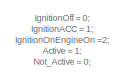
[diagram: root canvas - part 1/3, top center region]
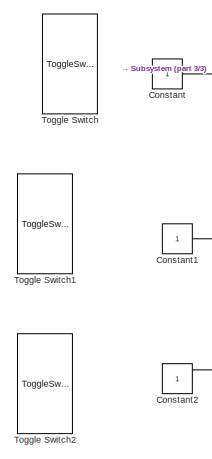
[diagram: root canvas - part 2/3, middle left region]
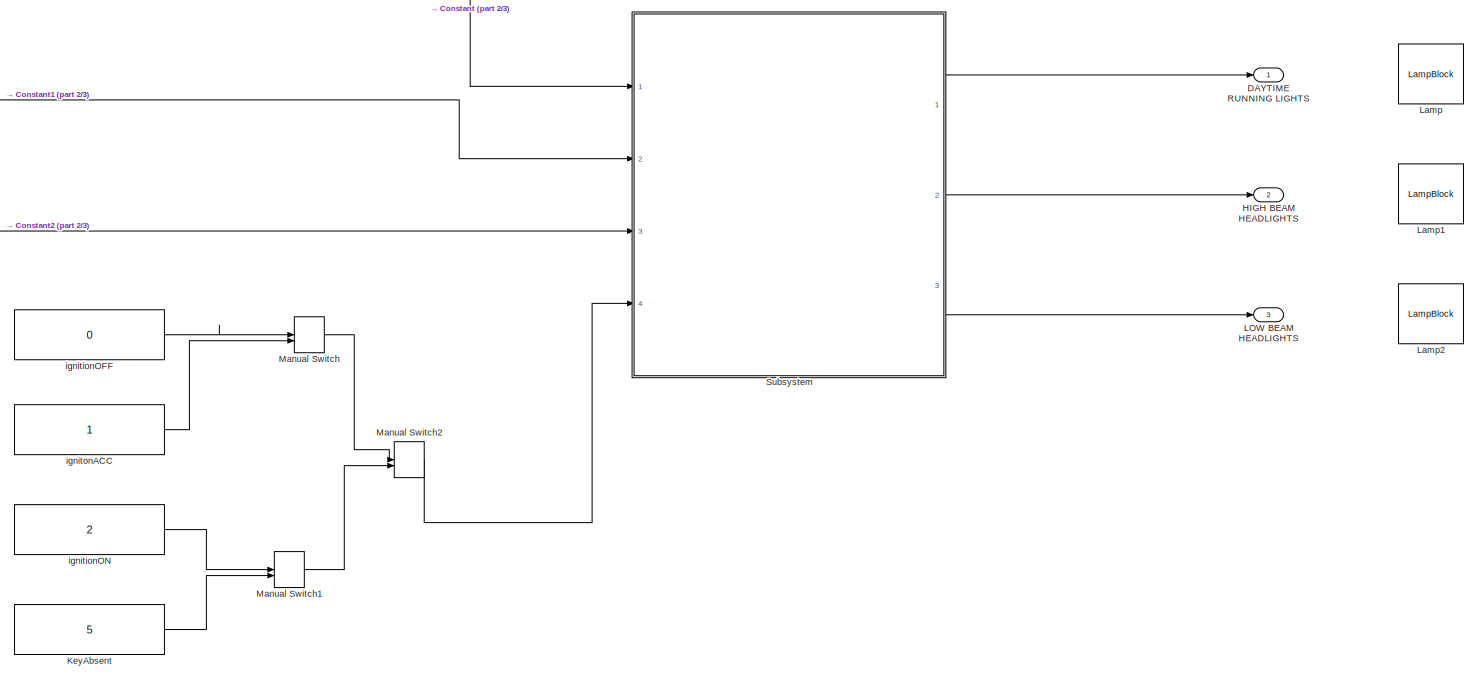
[diagram: root canvas - part 3/3, full width, middle band]
MODEL slx_621723db5ad0
KIND model
CONFIG AbsTol = auto
CONFIG EnableMultiTasking = off
CONFIG FixedStep = 0.01
CONFIG MaxStep = auto
CONFIG MinStep = auto
CONFIG RelTol = 1e-3
CONFIG SampleTimeConstraint = Unconstrained
CONFIG SolverName = FixedStepDiscrete
CONFIG StartTime = 0.0
CONFIG StopTime = inf
WORKSPACE source: MATLAB code (in-file)
WORKSPACE IgnitionOff = 0
WORKSPACE IgnitionACC = 1
WORKSPACE IgnitionOnEngineOn = 2
WORKSPACE KeyAbsent = 5
WORKSPACE Active = 1
WORKSPACE Not_Active = 0
BLOCK [Constant] Constant
BLOCK [Constant] Constant1
BLOCK [Constant] Constant2
BLOCK [Outport] DAYTIME RUNNING LIGHTS
BLOCK [Outport] HIGH BEAM HEADLIGHTS
  Port = 2
BLOCK [Constant] KeyAbsent
  SampleTime = -1
  Value = 5
BLOCK [Outport] LOW BEAM HEADLIGHTS
  Port = 3
BLOCK [LampBlock] Lamp
  LabelPosition = Hide
BLOCK [LampBlock] Lamp1
  LabelPosition = Hide
BLOCK [LampBlock] Lamp2
  LabelPosition = Hide
BLOCK [ManualSwitch] Manual Switch
  CurrentSetting = 0
BLOCK [ManualSwitch] Manual Switch1
  CurrentSetting = 0
BLOCK [ManualSwitch] Manual Switch2
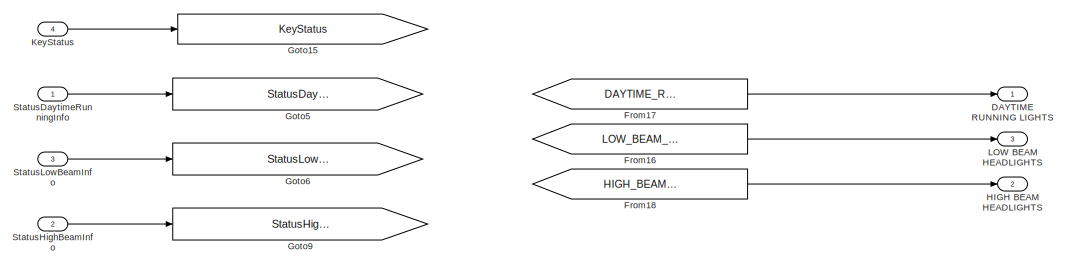
[diagram: Subsystem - part 1/3, top center region]
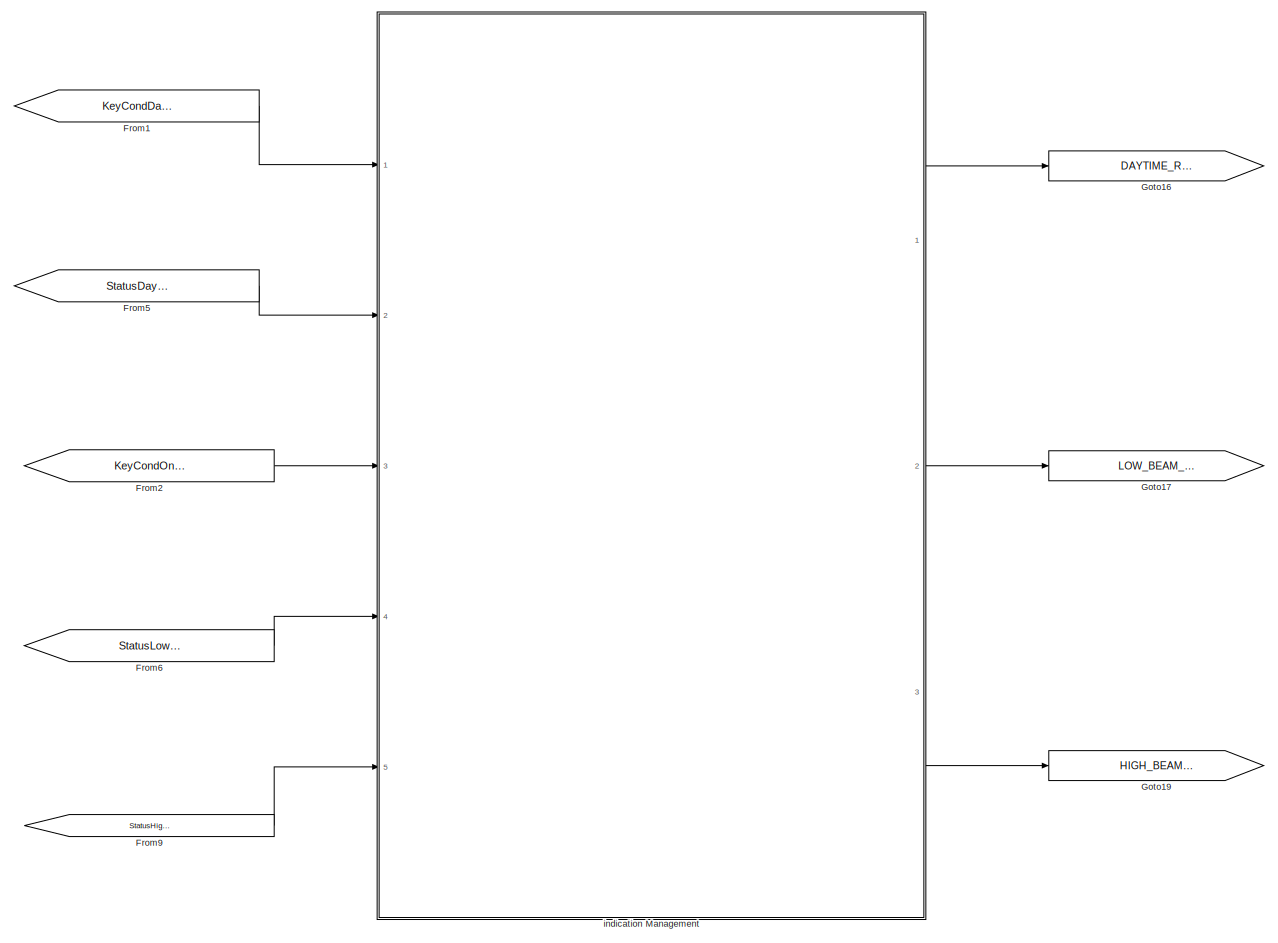
[diagram: Subsystem - part 2/3, middle right region]
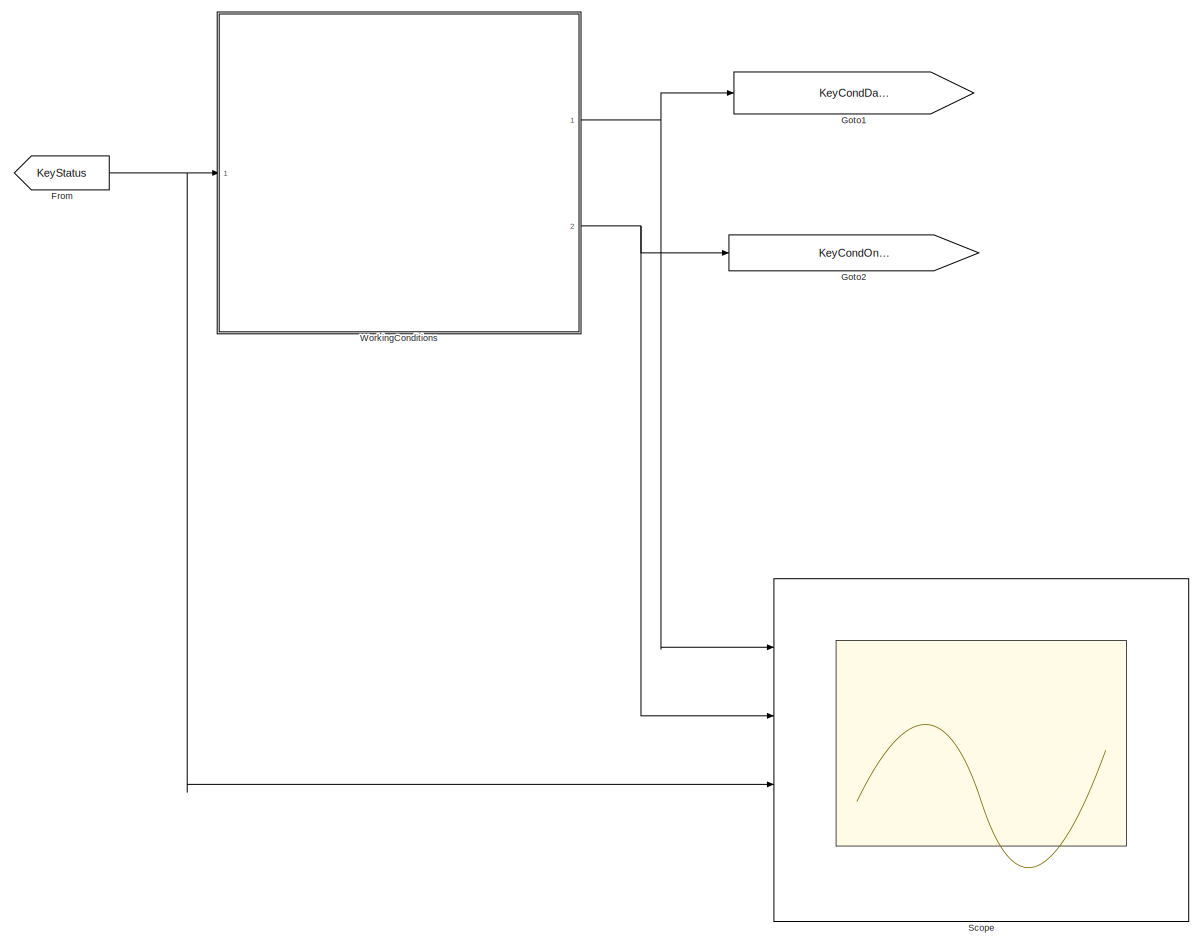
[diagram: Subsystem - part 3/3, bottom left region]
BLOCK [SubSystem] Subsystem
  Ports = [4, 3]
  RequestExecContextInheritance = off
BLOCK [Outport] Subsystem/DAYTIME RUNNING LIGHTS
BLOCK [From] Subsystem/From
  GotoTag = KeyStatus
BLOCK [From] Subsystem/From1
  GotoTag = KeyCondDayTimeLights
BLOCK [From] Subsystem/From16
  GotoTag = LOW_BEAM_HEADLIGHTS
BLOCK [From] Subsystem/From17
  GotoTag = DAYTIME_RUNNING_LIGHTS
BLOCK [From] Subsystem/From18
  GotoTag = HIGH_BEAM_HEADLIGHTS
BLOCK [From] Subsystem/From2
  GotoTag = KeyCondOnOrACC
BLOCK [From] Subsystem/From5
  GotoTag = StatusDaytimeRunningInfos
BLOCK [From] Subsystem/From6
  GotoTag = StatusLowBeamInfo
BLOCK [From] Subsystem/From9
  GotoTag = StatusHighBeamInfo
BLOCK [Goto] Subsystem/Goto1
  GotoTag = KeyCondDayTimeLights
BLOCK [Goto] Subsystem/Goto15
  GotoTag = KeyStatus
BLOCK [Goto] Subsystem/Goto16
  GotoTag = DAYTIME_RUNNING_LIGHTS
BLOCK [Goto] Subsystem/Goto17
  GotoTag = LOW_BEAM_HEADLIGHTS
BLOCK [Goto] Subsystem/Goto19
  GotoTag = HIGH_BEAM_HEADLIGHTS
BLOCK [Goto] Subsystem/Goto2
  GotoTag = KeyCondOnOrACC
BLOCK [Goto] Subsystem/Goto5
  GotoTag = StatusDaytimeRunningInfos
BLOCK [Goto] Subsystem/Goto6
  GotoTag = StatusLowBeamInfo
BLOCK [Goto] Subsystem/Goto9
  GotoTag = StatusHighBeamInfo
BLOCK [Outport] Subsystem/HIGH BEAM HEADLIGHTS
  Port = 2
BLOCK [Inport] Subsystem/KeyStatus
  Port = 4
BLOCK [Outport] Subsystem/LOW BEAM HEADLIGHTS
  Port = 3
BLOCK [Scope] Subsystem/Scope
  Floating = off
  NumInputPorts = 4
  Ports = [4]
  ScopeSpecificationString = Simulink.scopes.TimeScopeBlockCfg('CurrentConfiguration', extmgr.ConfigurationSet(extmgr.Configuration('Core','General UI',true),extmgr.Configuration('Core','Source UI',true),extmgr.Configuration('Sources','WiredSimulink',true),extmgr.Configuration('Visuals','Time Domain',true,'SerializedDisplays',{struct('MinYLimReal','0.9','MaxYLimReal','1.1','YLabelReal','','MinYLimMag','0.9','MaxYLimMag','1.1'...<+3400ch>
BLOCK [Inport] Subsystem/StatusDaytimeRunningInfo
BLOCK [Inport] Subsystem/StatusHighBeamInfo
  Port = 2
BLOCK [Inport] Subsystem/StatusLowBeamInfo
  Port = 3
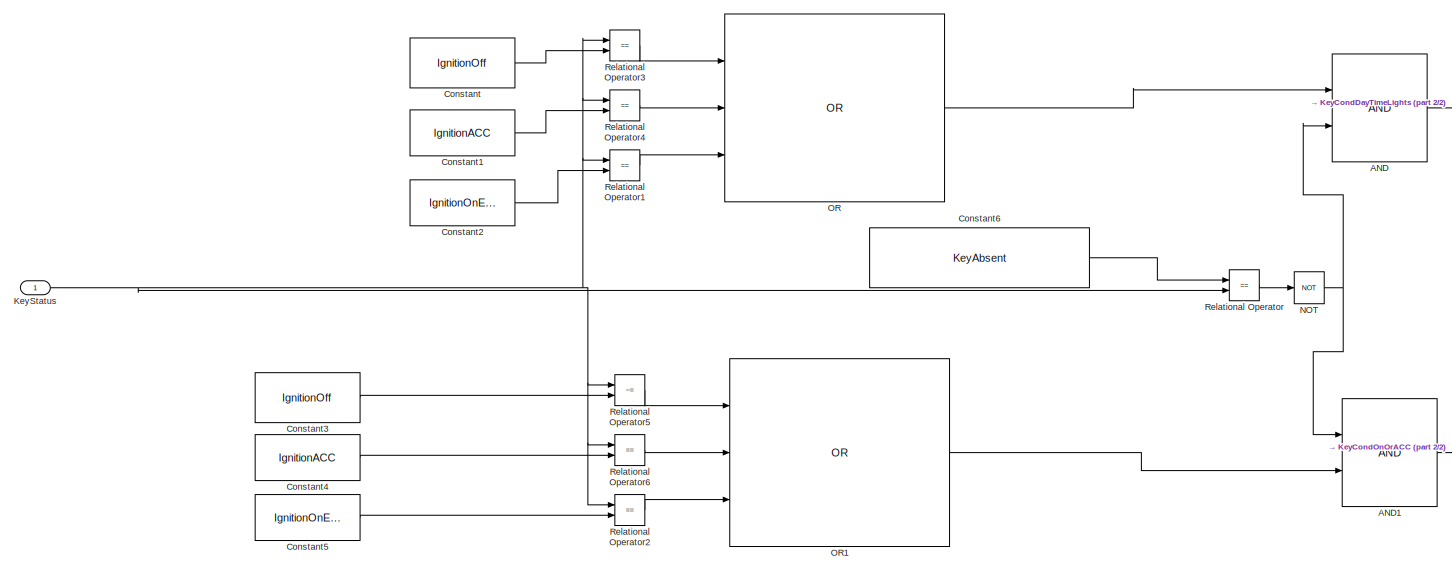
[diagram: Subsystem/WorkingConditions - part 1/2, most of the canvas]
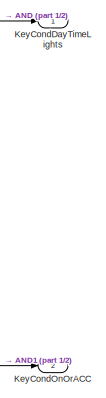
[diagram: Subsystem/WorkingConditions - part 2/2, middle right region]
BLOCK [SubSystem] Subsystem/WorkingConditions
  Ports = [1, 2]
  RequestExecContextInheritance = off
BLOCK [Logic] Subsystem/WorkingConditions/AND
  AllPortsSameDT = off
  IconShape = distinctive
  OutDataTypeStr = boolean
  Ports = [2, 1]
BLOCK [Logic] Subsystem/WorkingConditions/AND1
  AllPortsSameDT = off
  IconShape = distinctive
  OutDataTypeStr = boolean
  Ports = [2, 1]
BLOCK [Constant] Subsystem/WorkingConditions/Constant
  SampleTime = -1
  Value = IgnitionOff
BLOCK [Constant] Subsystem/WorkingConditions/Constant1
  SampleTime = -1
  Value = IgnitionACC
BLOCK [Constant] Subsystem/WorkingConditions/Constant2
  SampleTime = -1
  Value = IgnitionOnEngineOn
BLOCK [Constant] Subsystem/WorkingConditions/Constant3
  SampleTime = -1
  Value = IgnitionOff
BLOCK [Constant] Subsystem/WorkingConditions/Constant4
  SampleTime = -1
  Value = IgnitionACC
BLOCK [Constant] Subsystem/WorkingConditions/Constant5
  SampleTime = -1
  Value = IgnitionOnEngineOn
BLOCK [Constant] Subsystem/WorkingConditions/Constant6
  Value = KeyAbsent
BLOCK [Outport] Subsystem/WorkingConditions/KeyCondDayTimeLights
BLOCK [Outport] Subsystem/WorkingConditions/KeyCondOnOrACC
  Port = 2
BLOCK [Inport] Subsystem/WorkingConditions/KeyStatus
BLOCK [Logic] Subsystem/WorkingConditions/NOT
  AllPortsSameDT = off
  IconShape = distinctive
  Operator = NOT
  OutDataTypeStr = boolean
  Ports = [1, 1]
BLOCK [Logic] Subsystem/WorkingConditions/OR
  AllPortsSameDT = off
  IconShape = distinctive
  Inputs = 3
  Operator = OR
  OutDataTypeStr = boolean
  Ports = [3, 1]
BLOCK [Logic] Subsystem/WorkingConditions/OR1
  AllPortsSameDT = off
  IconShape = distinctive
  Inputs = 3
  Operator = OR
  OutDataTypeStr = boolean
  Ports = [3, 1]
BLOCK [RelationalOperator] Subsystem/WorkingConditions/Relational Operator
  InputSameDT = off
  Operator = ==
  OutDataTypeStr = boolean
  Ports = [2, 1]
  RndMeth = Simplest
BLOCK [RelationalOperator] Subsystem/WorkingConditions/Relational Operator1
  InputSameDT = off
  Operator = ==
  OutDataTypeStr = boolean
  Ports = [2, 1]
  RndMeth = Simplest
BLOCK [RelationalOperator] Subsystem/WorkingConditions/Relational Operator2
  InputSameDT = off
  Operator = ==
  OutDataTypeStr = boolean
  Ports = [2, 1]
  RndMeth = Simplest
BLOCK [RelationalOperator] Subsystem/WorkingConditions/Relational Operator3
  InputSameDT = off
  Operator = ==
  OutDataTypeStr = boolean
  Ports = [2, 1]
  RndMeth = Simplest
BLOCK [RelationalOperator] Subsystem/WorkingConditions/Relational Operator4
  InputSameDT = off
  Operator = ==
  OutDataTypeStr = boolean
  Ports = [2, 1]
  RndMeth = Simplest
BLOCK [RelationalOperator] Subsystem/WorkingConditions/Relational Operator5
  InputSameDT = off
  Operator = ~=
  OutDataTypeStr = boolean
  Ports = [2, 1]
  RndMeth = Simplest
BLOCK [RelationalOperator] Subsystem/WorkingConditions/Relational Operator6
  InputSameDT = off
  Operator = ==
  OutDataTypeStr = boolean
  Ports = [2, 1]
  RndMeth = Simplest
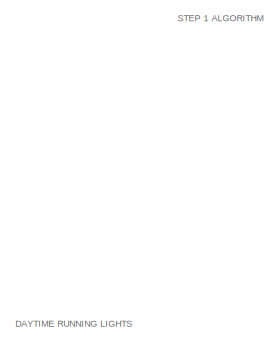
[diagram: Subsystem/indication Management - part 1/6, top center region]
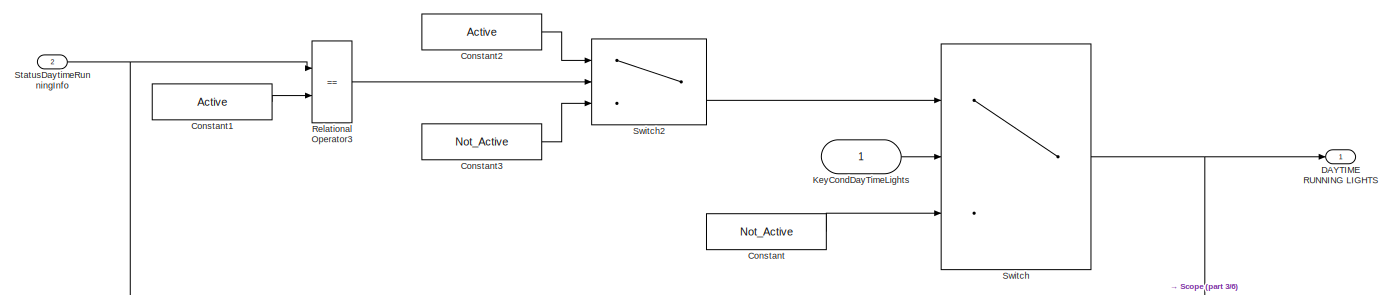
[diagram: Subsystem/indication Management - part 2/6, top center region]
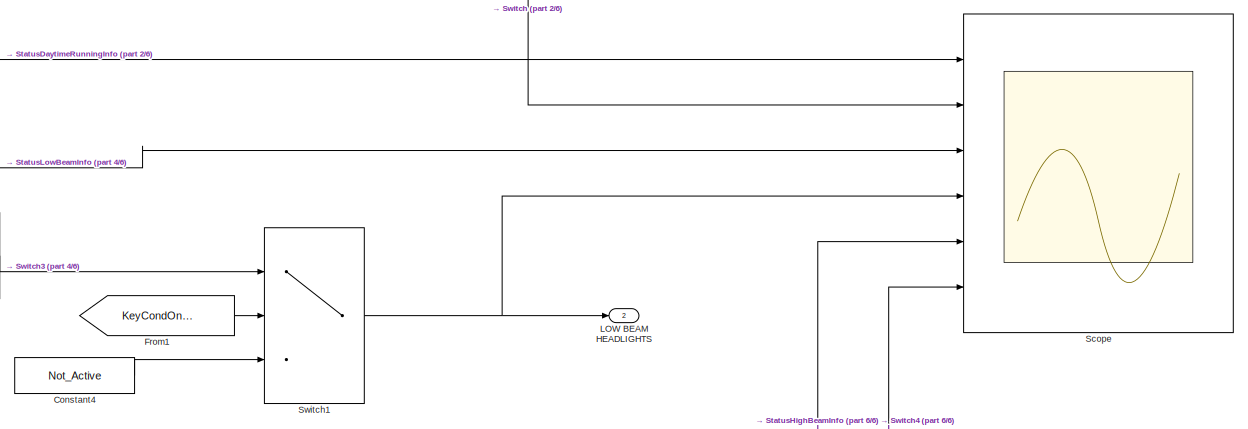
[diagram: Subsystem/indication Management - part 3/6, middle right region]
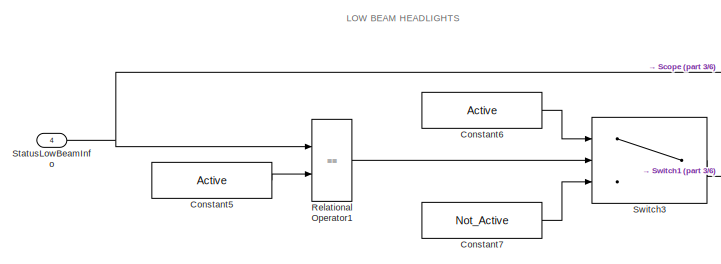
[diagram: Subsystem/indication Management - part 4/6, central region]
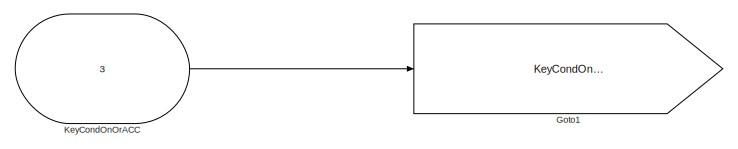
[diagram: Subsystem/indication Management - part 5/6, bottom left region]
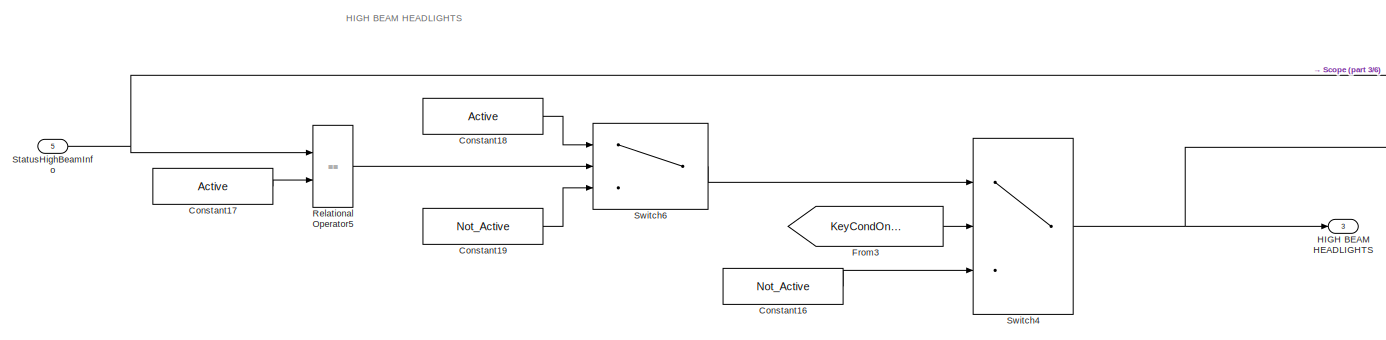
[diagram: Subsystem/indication Management - part 6/6, bottom center region]
BLOCK [SubSystem] Subsystem/indication Management
  Ports = [5, 3]
  RequestExecContextInheritance = off
BLOCK [Constant] Subsystem/indication Management/Constant
  SampleTime = -1
  Value = Not_Active
BLOCK [Constant] Subsystem/indication Management/Constant1
  SampleTime = -1
  Value = Active
BLOCK [Constant] Subsystem/indication Management/Constant16
  SampleTime = -1
  Value = Not_Active
BLOCK [Constant] Subsystem/indication Management/Constant17
  SampleTime = -1
  Value = Active
BLOCK [Constant] Subsystem/indication Management/Constant18
  SampleTime = -1
  Value = Active
BLOCK [Constant] Subsystem/indication Management/Constant19
  SampleTime = -1
  Value = Not_Active
BLOCK [Constant] Subsystem/indication Management/Constant2
  SampleTime = -1
  Value = Active
BLOCK [Constant] Subsystem/indication Management/Constant3
  SampleTime = -1
  Value = Not_Active
BLOCK [Constant] Subsystem/indication Management/Constant4
  SampleTime = -1
  Value = Not_Active
BLOCK [Constant] Subsystem/indication Management/Constant5
  SampleTime = -1
  Value = Active
BLOCK [Constant] Subsystem/indication Management/Constant6
  SampleTime = -1
  Value = Active
BLOCK [Constant] Subsystem/indication Management/Constant7
  SampleTime = -1
  Value = Not_Active
BLOCK [Outport] Subsystem/indication Management/DAYTIME RUNNING LIGHTS
BLOCK [From] Subsystem/indication Management/From1
  GotoTag = KeyCondOnOrACC
BLOCK [From] Subsystem/indication Management/From3
  GotoTag = KeyCondOnOrACC
BLOCK [Goto] Subsystem/indication Management/Goto1
  GotoTag = KeyCondOnOrACC
BLOCK [Outport] Subsystem/indication Management/HIGH BEAM HEADLIGHTS
  Port = 3
BLOCK [Inport] Subsystem/indication Management/KeyCondDayTimeLights
BLOCK [Inport] Subsystem/indication Management/KeyCondOnOrACC
  Port = 3
BLOCK [Outport] Subsystem/indication Management/LOW BEAM HEADLIGHTS
  Port = 2
BLOCK [RelationalOperator] Subsystem/indication Management/Relational Operator1
  InputSameDT = off
  Operator = ==
  OutDataTypeStr = boolean
  Ports = [2, 1]
  RndMeth = Simplest
BLOCK [RelationalOperator] Subsystem/indication Management/Relational Operator3
  InputSameDT = off
  Operator = ==
  OutDataTypeStr = boolean
  Ports = [2, 1]
  RndMeth = Simplest
BLOCK [RelationalOperator] Subsystem/indication Management/Relational Operator5
  InputSameDT = off
  Operator = ==
  OutDataTypeStr = boolean
  Ports = [2, 1]
  RndMeth = Simplest
BLOCK [Scope] Subsystem/indication Management/Scope
  Floating = off
  NumInputPorts = 6
  Ports = [6]
  ScopeSpecificationString = Simulink.scopes.TimeScopeBlockCfg('CurrentConfiguration', extmgr.ConfigurationSet(extmgr.Configuration('Core','General UI',true),extmgr.Configuration('Core','Source UI',true),extmgr.Configuration('Sources','WiredSimulink',true,'DataLoggingVariableName','ScopeData1'),extmgr.Configuration('Visuals','Time Domain',true,'SerializedDisplays',{struct('MinYLimReal','-0.125','MaxYLimReal','1.125','YLabelRe...<+4792ch>
BLOCK [Inport] Subsystem/indication Management/StatusDaytimeRunningInfo
  Port = 2
BLOCK [Inport] Subsystem/indication Management/StatusHighBeamInfo
  Port = 5
BLOCK [Inport] Subsystem/indication Management/StatusLowBeamInfo
  Port = 4
BLOCK [Switch] Subsystem/indication Management/Switch
  Criteria = u2 ~= 0
  InputSameDT = off
  SaturateOnIntegerOverflow = off
BLOCK [Switch] Subsystem/indication Management/Switch1
  Criteria = u2 ~= 0
  InputSameDT = off
  SaturateOnIntegerOverflow = off
BLOCK [Switch] Subsystem/indication Management/Switch2
  Criteria = u2 ~= 0
  InputSameDT = off
  SaturateOnIntegerOverflow = off
BLOCK [Switch] Subsystem/indication Management/Switch3
  Criteria = u2 ~= 0
  InputSameDT = off
  SaturateOnIntegerOverflow = off
BLOCK [Switch] Subsystem/indication Management/Switch4
  Criteria = u2 ~= 0
  InputSameDT = off
  SaturateOnIntegerOverflow = off
BLOCK [Switch] Subsystem/indication Management/Switch6
  Criteria = u2 ~= 0
  InputSameDT = off
  SaturateOnIntegerOverflow = off
BLOCK [ToggleSwitchBlock] Toggle Switch
BLOCK [ToggleSwitchBlock] Toggle Switch1
BLOCK [ToggleSwitchBlock] Toggle Switch2
BLOCK [Constant] ignitionOFF
  SampleTime = -1
  Value = 0
BLOCK [Constant] ignitionON
  SampleTime = -1
  Value = 2
BLOCK [Constant] ignitonACC
  SampleTime = -1
ANNOTATION (root): IgnitionOff = 0; IgnitionACC = 1; IgnitionOnEngineOn =2; Active = 1; Not_Active = 0;
ANNOTATION Subsystem/indication Management: DAYTIME RUNNING LIGHTS
ANNOTATION Subsystem/indication Management: HIGH BEAM HEADLIGHTS
ANNOTATION Subsystem/indication Management: LOW BEAM HEADLIGHTS
ANNOTATION Subsystem/indication Management: STEP 1 ALGORITHM
LINE Constant1:1 -> Subsystem:2
LINE Constant2:1 -> Subsystem:3
LINE Constant:1 -> Subsystem:1
LINE KeyAbsent:1 -> Manual Switch1:2
LINE Manual Switch1:1 -> Manual Switch2:2
LINE Manual Switch2:1 -> Subsystem:4
LINE Manual Switch:1 -> Manual Switch2:1
LINE Subsystem/From16:1 -> Subsystem/LOW BEAM HEADLIGHTS:1
LINE Subsystem/From17:1 -> Subsystem/DAYTIME RUNNING LIGHTS:1
LINE Subsystem/From18:1 -> Subsystem/HIGH BEAM HEADLIGHTS:1
LINE Subsystem/From1:1 -> Subsystem/indication Management:1
LINE Subsystem/From2:1 -> Subsystem/indication Management:3
LINE Subsystem/From5:1 -> Subsystem/indication Management:2
LINE Subsystem/From6:1 -> Subsystem/indication Management:4
LINE Subsystem/From9:1 -> Subsystem/indication Management:5
NET Subsystem/From:1 -> Subsystem/Scope:3, Subsystem/WorkingConditions:1
LINE Subsystem/KeyStatus:1 -> Subsystem/Goto15:1
LINE Subsystem/StatusDaytimeRunningInfo:1 -> Subsystem/Goto5:1
LINE Subsystem/StatusHighBeamInfo:1 -> Subsystem/Goto9:1
LINE Subsystem/StatusLowBeamInfo:1 -> Subsystem/Goto6:1
LINE Subsystem/WorkingConditions/AND1:1 -> Subsystem/WorkingConditions/KeyCondOnOrACC:1
LINE Subsystem/WorkingConditions/AND:1 -> Subsystem/WorkingConditions/KeyCondDayTimeLights:1
LINE Subsystem/WorkingConditions/Constant1:1 -> Subsystem/WorkingConditions/Relational Operator4:2
LINE Subsystem/WorkingConditions/Constant2:1 -> Subsystem/WorkingConditions/Relational Operator1:2
LINE Subsystem/WorkingConditions/Constant3:1 -> Subsystem/WorkingConditions/Relational Operator5:2
LINE Subsystem/WorkingConditions/Constant4:1 -> Subsystem/WorkingConditions/Relational Operator6:2
LINE Subsystem/WorkingConditions/Constant5:1 -> Subsystem/WorkingConditions/Relational Operator2:2
LINE Subsystem/WorkingConditions/Constant6:1 -> Subsystem/WorkingConditions/Relational Operator:1
LINE Subsystem/WorkingConditions/Constant:1 -> Subsystem/WorkingConditions/Relational Operator3:2
NET Subsystem/WorkingConditions/KeyStatus:1 -> Subsystem/WorkingConditions/Relational Operator1:1, Subsystem/WorkingConditions/Relational Operator2:1, Subsystem/WorkingConditions/Relational Operator3:1, Subsystem/WorkingConditions/Relational Operator4:1, Subsystem/WorkingConditions/Relational Operator5:1, Subsystem/WorkingConditions/Relational Operator6:1, Subsystem/WorkingConditions/Relational Operator:2
NET Subsystem/WorkingConditions/NOT:1 -> Subsystem/WorkingConditions/AND1:1, Subsystem/WorkingConditions/AND:2
LINE Subsystem/WorkingConditions/OR1:1 -> Subsystem/WorkingConditions/AND1:2
LINE Subsystem/WorkingConditions/OR:1 -> Subsystem/WorkingConditions/AND:1
LINE Subsystem/WorkingConditions/Relational Operator1:1 -> Subsystem/WorkingConditions/OR:3
LINE Subsystem/WorkingConditions/Relational Operator2:1 -> Subsystem/WorkingConditions/OR1:3
LINE Subsystem/WorkingConditions/Relational Operator3:1 -> Subsystem/WorkingConditions/OR:1
LINE Subsystem/WorkingConditions/Relational Operator4:1 -> Subsystem/WorkingConditions/OR:2
LINE Subsystem/WorkingConditions/Relational Operator5:1 -> Subsystem/WorkingConditions/OR1:1
LINE Subsystem/WorkingConditions/Relational Operator6:1 -> Subsystem/WorkingConditions/OR1:2
LINE Subsystem/WorkingConditions/Relational Operator:1 -> Subsystem/WorkingConditions/NOT:1
NET Subsystem/WorkingConditions:1 -> Subsystem/Goto1:1, Subsystem/Scope:1
NET Subsystem/WorkingConditions:2 -> Subsystem/Goto2:1, Subsystem/Scope:2
LINE Subsystem/indication Management/Constant16:1 -> Subsystem/indication Management/Switch4:3
LINE Subsystem/indication Management/Constant17:1 -> Subsystem/indication Management/Relational Operator5:2
LINE Subsystem/indication Management/Constant18:1 -> Subsystem/indication Management/Switch6:1
LINE Subsystem/indication Management/Constant19:1 -> Subsystem/indication Management/Switch6:3
LINE Subsystem/indication Management/Constant1:1 -> Subsystem/indication Management/Relational Operator3:2
LINE Subsystem/indication Management/Constant2:1 -> Subsystem/indication Management/Switch2:1
LINE Subsystem/indication Management/Constant3:1 -> Subsystem/indication Management/Switch2:3
LINE Subsystem/indication Management/Constant4:1 -> Subsystem/indication Management/Switch1:3
LINE Subsystem/indication Management/Constant5:1 -> Subsystem/indication Management/Relational Operator1:2
LINE Subsystem/indication Management/Constant6:1 -> Subsystem/indication Management/Switch3:1
LINE Subsystem/indication Management/Constant7:1 -> Subsystem/indication Management/Switch3:3
LINE Subsystem/indication Management/Constant:1 -> Subsystem/indication Management/Switch:3
LINE Subsystem/indication Management/From1:1 -> Subsystem/indication Management/Switch1:2
LINE Subsystem/indication Management/From3:1 -> Subsystem/indication Management/Switch4:2
LINE Subsystem/indication Management/KeyCondDayTimeLights:1 -> Subsystem/indication Management/Switch:2
LINE Subsystem/indication Management/KeyCondOnOrACC:1 -> Subsystem/indication Management/Goto1:1
LINE Subsystem/indication Management/Relational Operator1:1 -> Subsystem/indication Management/Switch3:2
LINE Subsystem/indication Management/Relational Operator3:1 -> Subsystem/indication Management/Switch2:2
LINE Subsystem/indication Management/Relational Operator5:1 -> Subsystem/indication Management/Switch6:2
NET Subsystem/indication Management/StatusDaytimeRunningInfo:1 -> Subsystem/indication Management/Relational Operator3:1, Subsystem/indication Management/Scope:1
NET Subsystem/indication Management/StatusHighBeamInfo:1 -> Subsystem/indication Management/Relational Operator5:1, Subsystem/indication Management/Scope:5
NET Subsystem/indication Management/StatusLowBeamInfo:1 -> Subsystem/indication Management/Relational Operator1:1, Subsystem/indication Management/Scope:3
NET Subsystem/indication Management/Switch1:1 -> Subsystem/indication Management/LOW BEAM HEADLIGHTS:1, Subsystem/indication Management/Scope:4
LINE Subsystem/indication Management/Switch2:1 -> Subsystem/indication Management/Switch:1
LINE Subsystem/indication Management/Switch3:1 -> Subsystem/indication Management/Switch1:1
NET Subsystem/indication Management/Switch4:1 -> Subsystem/indication Management/HIGH BEAM HEADLIGHTS:1, Subsystem/indication Management/Scope:6
LINE Subsystem/indication Management/Switch6:1 -> Subsystem/indication Management/Switch4:1
NET Subsystem/indication Management/Switch:1 -> Subsystem/indication Management/DAYTIME RUNNING LIGHTS:1, Subsystem/indication Management/Scope:2
LINE Subsystem/indication Management:1 -> Subsystem/Goto16:1
LINE Subsystem/indication Management:2 -> Subsystem/Goto17:1
LINE Subsystem/indication Management:3 -> Subsystem/Goto19:1
LINE Subsystem:1 -> DAYTIME RUNNING LIGHTS:1
LINE Subsystem:2 -> HIGH BEAM HEADLIGHTS:1
LINE Subsystem:3 -> LOW BEAM HEADLIGHTS:1
LINE ignitionOFF:1 -> Manual Switch:1
LINE ignitionON:1 -> Manual Switch1:1
LINE ignitonACC:1 -> Manual Switch:2
note: NET lines group one-source signal fan-out (src -> all destinations, sorted); 1:1 wires keep LINE
